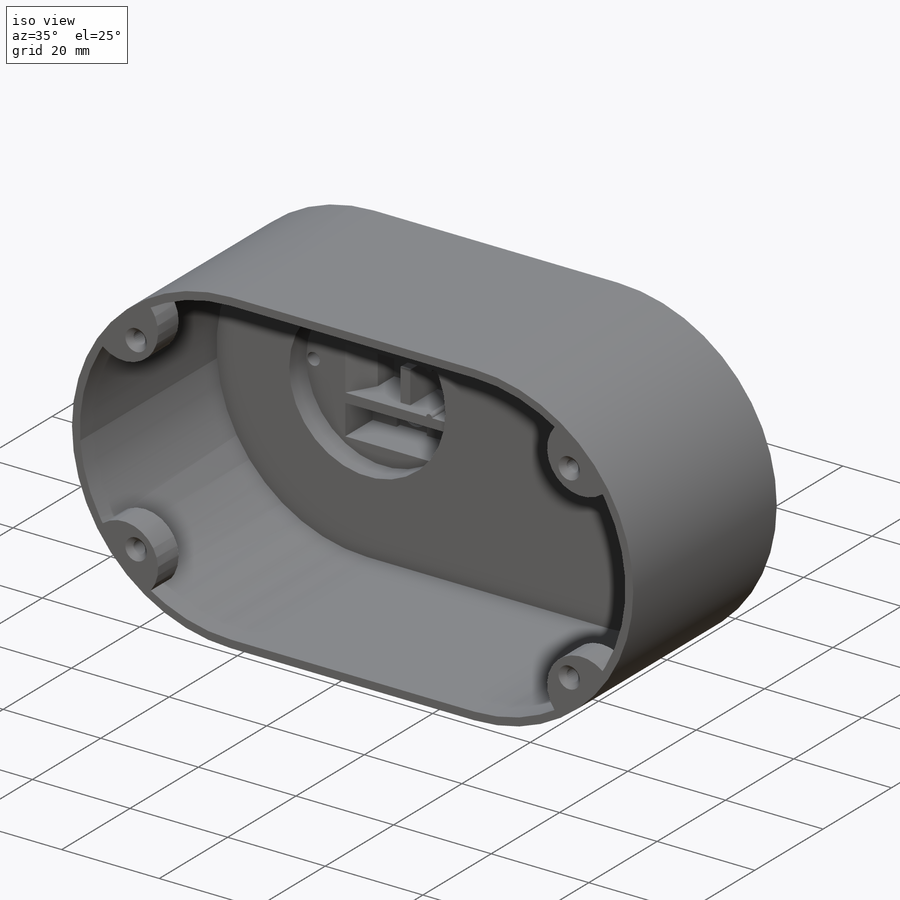
[diagram: iso view]
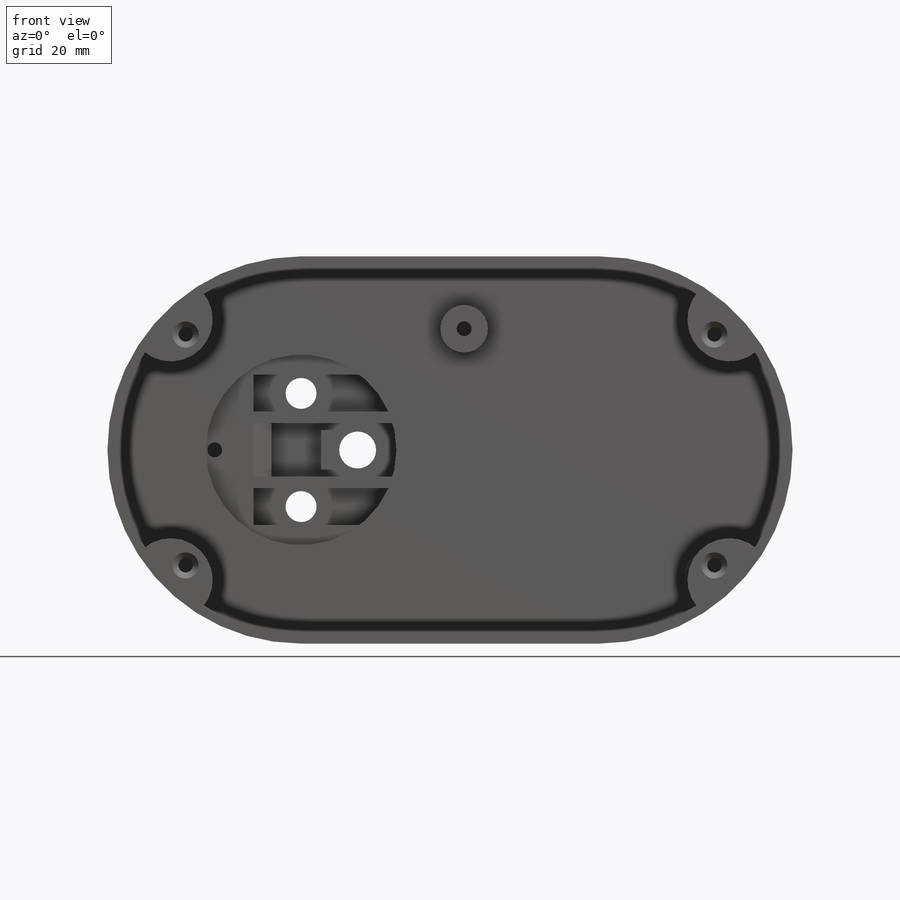
[diagram: front view]
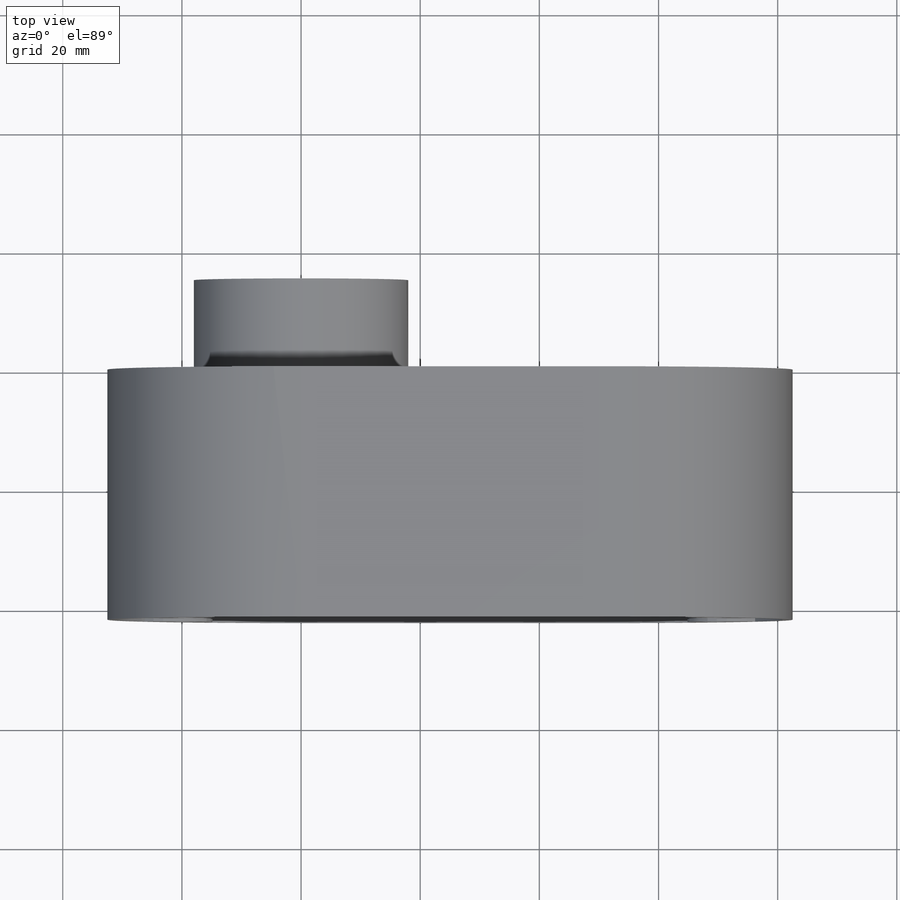
[diagram: top view]
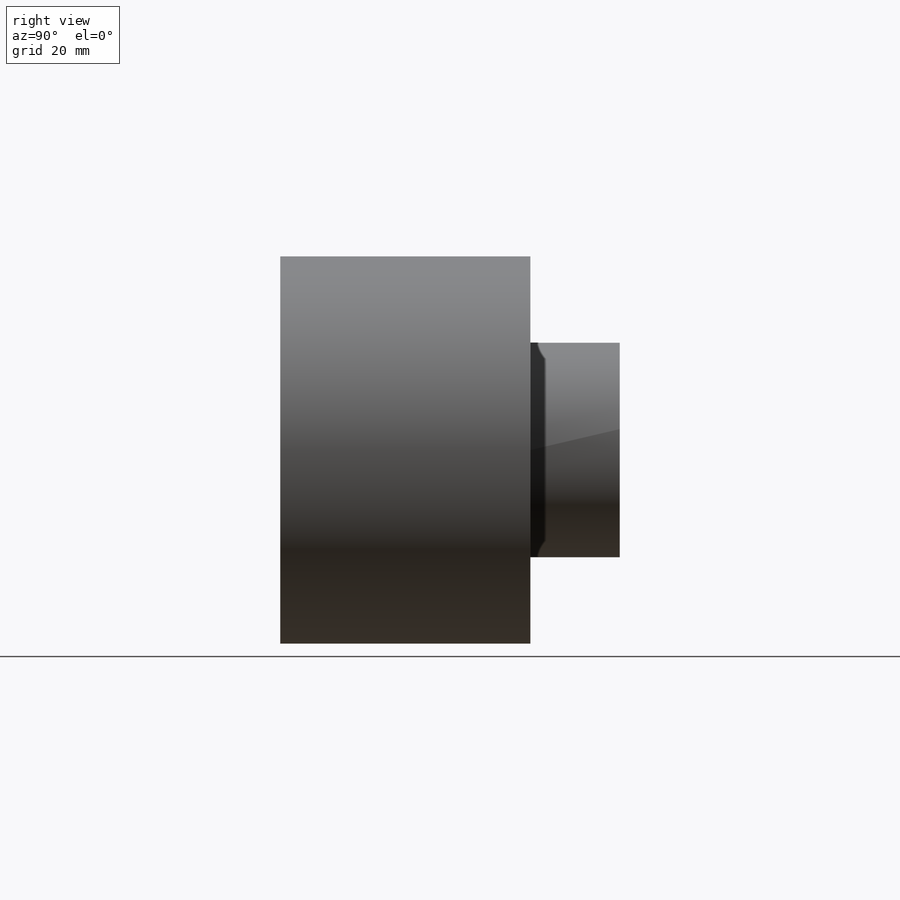
[diagram: right view]
SOLIDWORKS PART (.sldprt)
format: sldprt  version: not decoded by parser v0  size: 1,106,432 bytes
history: native  units: mm
features: sketch x101, extrude x7, cut_extrude x7, plane x4, mirror x4, chamfer x3, material x1, fillet x1 + 13 further entries (+8 scaffold rows collapsed)
feature tree (149):
  scaffold x8  (default folders/planes/origin — collapsed)
  material  "Matériau <non spécifié>"
  plane  "Plan de face"
  plane  "Plan de dessus"
  plane  "Plan de droite"
  sketch  "Esquisse1"  dims[c1.GUID_DATA1=3891427352.0 c1.GUID_DATA2=10063.0 c1.GUID_DATA3=19142.0 c2.GUID_DATA1=0.0 c2.GUID_DATA2=0.0 c2.GUID_DATA3=0.0 c2.GUID_DATA4=0.0mm c2.D1=32.5mm c2.D2=50.0mm]
  extrude  "Boss.-Extru.1"  Depth=2mm
  sketch  "{CAC399D5-7181-45B3-B7FF-4CB6D20FA387}"  dims[GUID_DATA1=2955653575.0 GUID_DATA2=54351.0 GUID_DATA3=18175.0 GUID_DATA4=0.0mm]
  sketch  "{2CB21223-2691-4886-9016-6CAEB0B5AC3D}"  dims[GUID_DATA1=2099586864.0 GUID_DATA2=50400.0 GUID_DATA3=16433.0 GUID_DATA4=0.0mm]
  sketch  "{3EBC2892-087A-48CD-A9FB-F90536A55A7B}"  dims[GUID_DATA1=251331843.0 GUID_DATA2=57051.0 GUID_DATA3=19384.0 GUID_DATA4=0.0mm]
  sketch  "{010481DC-C681-4EB2-8F40-6B2A79FB80EE}"  dims[GUID_DATA1=3942187016.0 GUID_DATA2=15484.0 GUID_DATA3=17201.0 GUID_DATA4=0.0mm]
  sketch  "{8CE13891-4C69-460B-9224-ED3F18BE4A56}"  dims[GUID_DATA1=268806512.0 GUID_DATA2=53401.0 GUID_DATA3=20333.0 GUID_DATA4=0.0mm]
  sketch  "{69EEE365-B148-46A7-AB54-C947E985E763}"  dims[GUID_DATA1=2578881357.0 GUID_DATA2=3548.0 GUID_DATA3=18072.0 GUID_DATA4=0.0mm]
  sketch  "{97764B1B-7099-4248-B48B-8FF073250A7C}"  dims[GUID_DATA1=2825704445.0 GUID_DATA2=45252.0 GUID_DATA3=18833.0 GUID_DATA4=0.0mm]
  "Esquisse2"
  sketch  "{E189EA8C-860C-497B-8E10-1ED0E1C1C1D0}"  dims[GUID_DATA1=1474706472.0 GUID_DATA2=6737.0 GUID_DATA3=17559.0 GUID_DATA4=0.0mm D1=36.0mm]
  extrude  "Boss.-Extru.2"  Depth=15mm
  sketch  "{675A2B22-71D7-47A8-B26C-B4EEA5A2F3A6}"  dims[GUID_DATA1=2573582615.0 GUID_DATA2=10901.0 GUID_DATA3=16830.0 GUID_DATA4=0.0mm]
  sketch  "{448FDAA1-1A55-4FD7-AE15-6AF6097A66E5}"  dims[GUID_DATA1=1635426370.0 GUID_DATA2=61090.0 GUID_DATA3=17356.0 GUID_DATA4=0.0mm]
  "Esquisse3"
  sketch  "{9596574C-DE57-4981-8D36-F91DE71BE8BA}"  dims[c1.GUID_DATA1=4196726974.0 c1.GUID_DATA2=47312.0 c1.GUID_DATA3=19763.0 c1.GUID_DATA4=0.0mm c1.D3=5.2mm c1.D4=6.2mm c1.D1=9.2mm c1.D2=9.5mm c2.D1=9.5mm]
  cut_extrude  "Enlèv. mat.-Extru.1"  [1 undecoded]
  sketch  "{3B7A77E8-7349-494E-98E4-59353B8DDAC3}"  dims[GUID_DATA1=1483609680.0 GUID_DATA2=13338.0 GUID_DATA3=17060.0 GUID_DATA4=0.0mm]
  sketch  "{4C65EE14-8E82-48EB-8050-534365ABA2F2}"  dims[GUID_DATA1=2198550263.0 GUID_DATA2=22047.0 GUID_DATA3=16528.0 GUID_DATA4=0.0mm]
  sketch  "{60EA13AD-C02F-4922-A046-4974609AB29D}"  dims[GUID_DATA1=2693622714.0 GUID_DATA2=26927.0 GUID_DATA3=19316.0 GUID_DATA4=0.0mm]
  "Esquisse4"
  sketch  "{06432869-9013-47AD-847D-2629B7E2244C}"  dims[GUID_DATA1=3978762357.0 GUID_DATA2=8318.0 GUID_DATA3=17601.0 GUID_DATA4=0.0mm D1=32.0mm]
  cut_extrude  "Enlèv. mat.-Extru.2"  Depth=12mm
  sketch  "{77ABC9E6-71DA-4984-AE23-7BEED36460FF}"  dims[GUID_DATA1=4242968505.0 GUID_DATA2=61816.0 GUID_DATA3=19689.0 GUID_DATA4=0.0mm]
  sketch  "{9F793D0B-1E08-428A-9C78-9C463046D8DD}"  dims[GUID_DATA1=1829321910.0 GUID_DATA2=62031.0 GUID_DATA3=18561.0 GUID_DATA4=0.0mm]
  "Esquisse5"
  sketch  "{6CF0DC9D-C90F-4735-88B3-4187D17C6903}"  dims[GUID_DATA1=3138130186.0 GUID_DATA2=24549.0 GUID_DATA3=19891.0 GUID_DATA4=0.0mm D1=7.7mm D2=14.5mm D3=9.0mm]
  cut_extrude  "Enlèv. mat.-Extru.3"  Depth=2mm
  sketch  "{5D09149A-F6F2-4479-ABDA-EC0E541225FA}"  dims[GUID_DATA1=1030500142.0 GUID_DATA2=43944.0 GUID_DATA3=17436.0 GUID_DATA4=0.0mm]
  sketch  "{DDC24788-323C-4D8C-BA52-CC31A376D18A}"  dims[GUID_DATA1=103536875.0 GUID_DATA2=37597.0 GUID_DATA3=20080.0 GUID_DATA4=0.0mm]
  sketch  "{221F4340-D651-4FCD-B448-9DF5FE4F5A22}"  dims[GUID_DATA1=505320140.0 GUID_DATA2=21019.0 GUID_DATA3=17514.0 GUID_DATA4=0.0mm]
  sketch  "{0B5BB005-021E-4332-87C3-D5BFC9976D1F}"  dims[GUID_DATA1=3677326501.0 GUID_DATA2=33127.0 GUID_DATA3=19586.0 GUID_DATA4=0.0mm]
  sketch  "{EE6E0E8C-495F-447A-BBDC-1297484589D9}"  dims[GUID_DATA1=1877150418.0 GUID_DATA2=47297.0 GUID_DATA3=17332.0 GUID_DATA4=0.0mm]
  sketch  "{7BFE6BD9-BCA7-4530-8508-F7B7C89335EE}"  dims[GUID_DATA1=2218851768.0 GUID_DATA2=22216.0 GUID_DATA3=17987.0 GUID_DATA4=0.0mm]
  fillet  "Congé1"  Radius=2mm
  sketch  "{484D6F17-37EF-4B0D-A4BB-2232D47B4E47}"  dims[GUID_DATA1=4103685495.0 GUID_DATA2=12097.0 GUID_DATA3=18227.0 GUID_DATA4=0.0mm]
  sketch  "{F0CB7596-7514-4A0A-B9E2-C70915F36441}"  dims[GUID_DATA1=2253126026.0 GUID_DATA2=18413.0 GUID_DATA3=19844.0 GUID_DATA4=0.0mm]
  "Esquisse6"
  sketch  "{3C2C4D8B-6726-4A76-84B7-DD2FAAC8BF6B}"  dims[GUID_DATA1=1876612188.0 GUID_DATA2=65043.0 GUID_DATA3=19238.0 GUID_DATA4=0.0mm D1=0.6mm]
  extrude  "Boss.-Extru.3"  [1 undecoded]
  sketch  "{BBA96E1B-69CA-4486-8082-863A64B8AEDA}"  dims[GUID_DATA1=2850821204.0 GUID_DATA2=41414.0 GUID_DATA3=16709.0 GUID_DATA4=0.0mm]
  sketch  "{E38207F5-EEC5-4D4D-B595-A9BB106702B9}"  dims[GUID_DATA1=2870247874.0 GUID_DATA2=53597.0 GUID_DATA3=19318.0 GUID_DATA4=0.0mm]
  mirror  "Symétrie1"
  sketch  "{3FF35698-7D08-46DC-AC71-AF5CBE242BE9}"  dims[GUID_DATA1=1809523205.0 GUID_DATA2=26079.0 GUID_DATA3=19003.0 GUID_DATA4=0.0mm]
  sketch  "{D5B9F9D5-4B8F-4171-A0CC-CA628296C27A}"  dims[GUID_DATA1=1803480661.0 GUID_DATA2=63673.0 GUID_DATA3=18233.0 GUID_DATA4=0.0mm]
  "Esquisse7"
  sketch  "{366FC631-0C1B-40D3-AA0C-F912D7E897A5}"  dims[GUID_DATA1=2690981584.0 GUID_DATA2=40961.0 GUID_DATA3=17001.0 GUID_DATA4=0.0mm D1=1.2mm D2=2.0mm D3=4.2mm]
  extrude  "Boss.-Extru.4"  [1 undecoded]
  sketch  "{17C4F2AE-77B0-42B0-8F11-0B19A950069E}"  dims[GUID_DATA1=1715804824.0 GUID_DATA2=33870.0 GUID_DATA3=16652.0 GUID_DATA4=0.0mm]
  sketch  "{321ED3AC-0709-4179-AB0A-BBDF16EBF307}"  dims[GUID_DATA1=653467230.0 GUID_DATA2=40904.0 GUID_DATA3=19993.0 GUID_DATA4=0.0mm]
  sketch  "{39F21528-19C2-425F-AB18-E34AD1E5604C}"  dims[GUID_DATA1=3655320855.0 GUID_DATA2=6307.0 GUID_DATA3=18543.0 GUID_DATA4=0.0mm]
  sketch  "{7965F988-76F0-432E-8411-2C7E37250ECF}"  dims[GUID_DATA1=4065182261.0 GUID_DATA2=41955.0 GUID_DATA3=17676.0 GUID_DATA4=0.0mm]
  sketch  "{256A35DA-3CAE-4FA7-B2E1-CA392DC179D9}"  dims[GUID_DATA1=1529933444.0 GUID_DATA2=19904.0 GUID_DATA3=18630.0 GUID_DATA4=0.0mm]
  "Esquisse9"
  sketch  "{338614C1-AF00-4BF1-B42E-D2EC6FC9B9E0}"  dims[GUID_DATA1=3222455488.0 GUID_DATA2=32361.0 GUID_DATA3=17463.0 GUID_DATA4=0.0mm D1=6.2mm D2=8.0mm]
  cut_extrude  "Enlèv. mat.-Extru.4"  Depth=4mm
  sketch  "{F817381A-C1F1-498A-BF1A-1CA5A7C5F3F6}"  dims[GUID_DATA1=4213509259.0 GUID_DATA2=20209.0 GUID_DATA3=18895.0 GUID_DATA4=0.0mm]
  sketch  "{151D5179-EE12-41C9-990B-61AE79095DC6}"  dims[GUID_DATA1=52988858.0 GUID_DATA2=38109.0 GUID_DATA3=17329.0 GUID_DATA4=0.0mm]
  sketch  "{6B5600E3-FDCC-4689-BE43-155F28DD9A98}"  dims[GUID_DATA1=2665514392.0 GUID_DATA2=40876.0 GUID_DATA3=20154.0 GUID_DATA4=0.0mm]
  sketch  "{E8A4BD90-1B29-457F-ABD0-97564BA14E62}"  dims[GUID_DATA1=2742448199.0 GUID_DATA2=42488.0 GUID_DATA3=20253.0 GUID_DATA4=0.0mm]
  sketch  "{0C20FA27-E7C2-4454-97D3-AD34347ED692}"  dims[GUID_DATA1=1606660904.0 GUID_DATA2=11615.0 GUID_DATA3=18654.0 GUID_DATA4=0.0mm]
  "Esquisse10"
  sketch  "{F506078A-5B24-4B83-B3ED-06344D52B8C3}"  dims[GUID_DATA1=4097236769.0 GUID_DATA2=51182.0 GUID_DATA3=18287.0 GUID_DATA4=0.0mm D1=6.0mm]
  cut_extrude  "Enlèv. mat.-Extru.6"  Depth=1mm
  sketch  "{B4D0B40E-0359-4DC8-9C4C-C5CA2ADA9759}"  dims[GUID_DATA1=2951278119.0 GUID_DATA2=1305.0 GUID_DATA3=16500.0 GUID_DATA4=0.0mm]
  sketch  "{7A6535FE-9B7C-4581-9781-B414FBCE5B87}"  dims[GUID_DATA1=883260422.0 GUID_DATA2=54807.0 GUID_DATA3=19328.0 GUID_DATA4=0.0mm]
  sketch  "{7EDB965B-84A3-43A8-9674-73BFC7EB3D19}"  dims[GUID_DATA1=1138269635.0 GUID_DATA2=5888.0 GUID_DATA3=20380.0 GUID_DATA4=0.0mm]
  sketch  "{9CD52951-EC2D-4DEF-A741-CE1D49281F07}"  dims[GUID_DATA1=2536364749.0 GUID_DATA2=19816.0 GUID_DATA3=19167.0 GUID_DATA4=0.0mm]
  sketch  "{FD26AF42-6C70-41EA-BDFA-CE3BA5517F0D}"  dims[GUID_DATA1=2164924819.0 GUID_DATA2=2515.0 GUID_DATA3=19656.0 GUID_DATA4=0.0mm]
  sketch  "{E5DC19DC-3478-407F-B4DA-2782C0D0C43E}"  dims[GUID_DATA1=3178595680.0 GUID_DATA2=18827.0 GUID_DATA3=19495.0 GUID_DATA4=0.0mm]
  mirror  "Symétrie2"
  sketch  "{5A9191E4-05E6-4ADF-A58D-7E92CBB32D2F}"  dims[GUID_DATA1=4080400372.0 GUID_DATA2=37056.0 GUID_DATA3=18953.0 GUID_DATA4=0.0mm]
  sketch  "{906A6833-F087-4FCE-82C7-0E50A6401280}"  dims[GUID_DATA1=1153811633.0 GUID_DATA2=49315.0 GUID_DATA3=17920.0 GUID_DATA4=0.0mm]
  sketch  "{C3794B0D-8901-49F4-BA78-74AE1544A02A}"  dims[GUID_DATA1=1494864752.0 GUID_DATA2=40468.0 GUID_DATA3=18163.0 GUID_DATA4=0.0mm]
  sketch  "{73A8F340-1B57-4C7D-9D25-B8075E872D85}"  dims[GUID_DATA1=235367223.0 GUID_DATA2=64331.0 GUID_DATA3=19723.0 GUID_DATA4=0.0mm]
  sketch  "{5CF06AD5-1FDB-4F01-B1FD-428F7B3AAB02}"  dims[GUID_DATA1=495899555.0 GUID_DATA2=15230.0 GUID_DATA3=20437.0 GUID_DATA4=0.0mm]
  sketch  "{F5D82AC7-9833-4567-8BC4-586DEA138FD5}"  dims[GUID_DATA1=2676155084.0 GUID_DATA2=53359.0 GUID_DATA3=18198.0 GUID_DATA4=0.0mm]
  sketch  "{3C5A4DF7-6556-434D-91B6-C5C3D694EFE8}"  dims[GUID_DATA1=2467368391.0 GUID_DATA2=24470.0 GUID_DATA3=18743.0 GUID_DATA4=0.0mm]
  sketch  "{F324C097-AAC7-4EC1-B8C8-C0A314FE0ADA}"  dims[GUID_DATA1=826442208.0 GUID_DATA2=57669.0 GUID_DATA3=19064.0 GUID_DATA4=0.0mm]
  "Esquisse11"
  sketch  "{D5F7A324-5E00-4A89-ADDD-D8701FF5DC27}"  dims[GUID_DATA1=2604869394.0 GUID_DATA2=10261.0 GUID_DATA3=19323.0 GUID_DATA4=0.0mm D1=2.5mm D2=14.5mm]
  cut_extrude  "Enlèv. mat.-Extru.7"  Depth=10mm
  sketch  "{9C3807F2-126B-4E80-9BA1-CD7489AEAC9A}"  dims[GUID_DATA1=1249105013.0 GUID_DATA2=53831.0 GUID_DATA3=20317.0 GUID_DATA4=0.0mm]
  sketch  "{336903FA-905A-41B6-A25B-E941B1C5369B}"  dims[GUID_DATA1=3718020414.0 GUID_DATA2=36268.0 GUID_DATA3=19689.0 GUID_DATA4=0.0mm]
  chamfer  "Chanfrein1"  Distance=3mm Angle=60deg
  sketch  "{ED71B5A8-49ED-441B-86ED-61D4BB03DE53}"  dims[GUID_DATA1=305085153.0 GUID_DATA2=13356.0 GUID_DATA3=18121.0 GUID_DATA4=0.0mm]
  "Esquisse12"
  sketch  "{15D87456-8A5C-4019-B666-80EFD2633C21}"  dims[GUID_DATA1=1770746895.0 GUID_DATA2=51152.0 GUID_DATA3=18453.0 GUID_DATA4=0.0mm D1=1.6mm]
  extrude  "Boss.-Extru.5"  Depth=40mm
  sketch  "{BC42DFDD-5DA8-4137-9040-1A61B92C6375}"  dims[GUID_DATA1=2704124908.0 GUID_DATA2=17573.0 GUID_DATA3=17778.0 GUID_DATA4=0.0mm]
  sketch  "{B8410919-F367-4115-BF6C-904DA6D5E8F7}"  dims[GUID_DATA1=1743250156.0 GUID_DATA2=62238.0 GUID_DATA3=17796.0 GUID_DATA4=0.0mm]
  sketch  "{72CAB75A-1496-4D7D-A5B1-C9A24A6F4FF2}"  dims[GUID_DATA1=407106108.0 GUID_DATA2=51092.0 GUID_DATA3=18396.0 GUID_DATA4=0.0mm]
  sketch  "{0E2AA6CC-737B-444F-801D-2A689F0FA6DE}"  dims[GUID_DATA1=3348197263.0 GUID_DATA2=20324.0 GUID_DATA3=18063.0 GUID_DATA4=0.0mm]
  sketch  "{9E8D8355-92A8-4E5F-BB1C-F0BC9DEF6B3E}"  dims[GUID_DATA1=1124954678.0 GUID_DATA2=52568.0 GUID_DATA3=17615.0 GUID_DATA4=0.0mm]
  "Esquisse13"
  sketch  "{7B11852A-1C81-4806-AE20-C379D2F1F41C}"  dims[GUID_DATA1=632234268.0 GUID_DATA2=57122.0 GUID_DATA3=17390.0 GUID_DATA4=0.0mm D1=1.0mm D2=6.0mm]
  cut_extrude  "Enlèv. mat.-Extru.12"  Depth=2mm
  sketch  "{B44246D3-5473-488B-B10A-3783ACAE06FE}"  dims[GUID_DATA1=2491202449.0 GUID_DATA2=42155.0 GUID_DATA3=20079.0 GUID_DATA4=0.0mm]
  sketch  "{820E6DC0-4BF7-42EC-8467-92A1D7336841}"  dims[GUID_DATA1=3699125554.0 GUID_DATA2=56428.0 GUID_DATA3=17654.0 GUID_DATA4=0.0mm]
  sketch  "{DAB175ED-7718-44F7-9F33-F26F3F839A2E}"  dims[GUID_DATA1=3629424453.0 GUID_DATA2=59231.0 GUID_DATA3=16672.0 GUID_DATA4=0.0mm]
  sketch  "{74CF86F7-4E72-46E6-9413-CA05843ED5E7}"  dims[GUID_DATA1=2826138109.0 GUID_DATA2=45124.0 GUID_DATA3=19301.0 GUID_DATA4=0.0mm]
  "Esquisse14"
  sketch  "{D7A27B06-DC08-4088-9220-3AEA655C76F9}"  dims[GUID_DATA1=2344596665.0 GUID_DATA2=48704.0 GUID_DATA3=16600.0 GUID_DATA4=0.0mm D1=8.0mm D2=2.5mm D3=2.5mm D4=8.0mm]
  extrude  "Boss.-Extru.6"  Depth=11mm
  sketch  "{4A45E8F9-88AF-4C4A-8C9B-FB3ED26488C3}"  dims[GUID_DATA1=1629062774.0 GUID_DATA2=4144.0 GUID_DATA3=16719.0 GUID_DATA4=0.0mm]
  sketch  "{E9416869-A2D0-440A-B4C0-B8A90F373522}"  dims[GUID_DATA1=43502906.0 GUID_DATA2=34878.0 GUID_DATA3=19744.0 GUID_DATA4=0.0mm]
  sketch  "{F02B2743-7430-4166-AB8E-082BFEA7E03F}"  dims[GUID_DATA1=4147923293.0 GUID_DATA2=60390.0 GUID_DATA3=18775.0 GUID_DATA4=0.0mm]
  sketch  "{ADC976B7-8141-4424-9E78-F0FF559B3831}"  dims[GUID_DATA1=2835347002.0 GUID_DATA2=41061.0 GUID_DATA3=19820.0 GUID_DATA4=0.0mm]
  sketch  "{38F72785-C233-434D-978E-F31640371963}"  dims[GUID_DATA1=2710803020.0 GUID_DATA2=2680.0 GUID_DATA3=16913.0 GUID_DATA4=0.0mm]
  sketch  "{D2371A95-8602-4FBA-929A-00C72E3192F9}"  dims[GUID_DATA1=1531153814.0 GUID_DATA2=31267.0 GUID_DATA3=17783.0 GUID_DATA4=0.0mm]
  sketch  "{619F3E59-F58C-44D4-9E44-FF4A853E7F60}"  dims[GUID_DATA1=4110257937.0 GUID_DATA2=8540.0 GUID_DATA3=17153.0 GUID_DATA4=0.0mm]
  sketch  "{2EEA4D44-ED8C-49D0-8115-FD7659CBBCBB}"  dims[GUID_DATA1=2482245011.0 GUID_DATA2=64015.0 GUID_DATA3=18340.0 GUID_DATA4=0.0mm]
  "Esquisse16"
  sketch  "{4B44BD26-1521-4D9D-A336-08E539D929FD}"  dims[c1.GUID_DATA1=3142072347.0 c1.GUID_DATA2=51456.0 c1.GUID_DATA3=18178.0 c1.GUID_DATA4=0.0mm c1.D2=2.4mm c1.D3=~6.84045mm c1.D4=7.0mm c1.D1=30.0mm c2.D1=135.0deg c2.D3=3.5mm]
  extrude  "Boss.-Extru.7"  Depth=10mm
  sketch  "{9AEC206B-9C3F-48E3-88AE-1ABB1EB93EAB}"  dims[GUID_DATA1=3509107819.0 GUID_DATA2=4027.0 GUID_DATA3=16813.0 GUID_DATA4=0.0mm]
  sketch  "{F6537DAC-5873-4FC7-A8FE-715DAA62BFEB}"  dims[GUID_DATA1=1192305209.0 GUID_DATA2=61855.0 GUID_DATA3=19489.0 GUID_DATA4=0.0mm]
  sketch  "{96394DE4-0D59-44B6-9851-06BBBDEF4105}"  dims[GUID_DATA1=1987170371.0 GUID_DATA2=33937.0 GUID_DATA3=16806.0 GUID_DATA4=0.0mm]
  mirror  "Symétrie3"
  sketch  "{A4F97D1A-3CE1-473F-9A1E-65B96044F80C}"  dims[GUID_DATA1=1469988627.0 GUID_DATA2=65480.0 GUID_DATA3=19085.0 GUID_DATA4=0.0mm]
  sketch  "{E3D2D5C9-6477-4B0E-9AD5-E749342DB416}"  dims[GUID_DATA1=1716179900.0 GUID_DATA2=59542.0 GUID_DATA3=18448.0 GUID_DATA4=0.0mm]
  plane  "Plan2"
  mirror  "Symétrie4"
  sketch  "{4C47EC7C-5AF1-4A46-886B-ABCECEBF1E93}"  dims[GUID_DATA1=475595534.0 GUID_DATA2=50207.0 GUID_DATA3=17310.0 GUID_DATA4=0.0mm]
  sketch  "{FBB9954E-67AA-441F-A1C7-D822C7F384F1}"  dims[GUID_DATA1=1841972802.0 GUID_DATA2=38791.0 GUID_DATA3=17146.0 GUID_DATA4=0.0mm]
  sketch  "{8ECFC1A8-E296-4CAB-8F61-30D58BF717CE}"  dims[GUID_DATA1=4290927279.0 GUID_DATA2=38562.0 GUID_DATA3=18607.0 GUID_DATA4=0.0mm]
  sketch  "{8F1733AD-727F-46C7-B080-62D80B8D150A}"  dims[GUID_DATA1=3594652357.0 GUID_DATA2=41029.0 GUID_DATA3=17059.0 GUID_DATA4=0.0mm]
  sketch  "{A26BCC20-AF62-43EE-8B0B-FB3DC6F2902A}"  dims[GUID_DATA1=3653660987.0 GUID_DATA2=18105.0 GUID_DATA3=20329.0 GUID_DATA4=0.0mm]
  sketch  "{6AD75420-655C-4500-9BE1-959981C59F56}"  dims[GUID_DATA1=2024262380.0 GUID_DATA2=10765.0 GUID_DATA3=17485.0 GUID_DATA4=0.0mm]
  sketch  "{565EFACD-99C1-4B71-8A43-ED51048EDA0C}"  dims[GUID_DATA1=665364800.0 GUID_DATA2=4125.0 GUID_DATA3=18735.0 GUID_DATA4=0.0mm]
  sketch  "{7DC15D66-9964-4517-B6AE-D9D824155670}"  dims[GUID_DATA1=1864993127.0 GUID_DATA2=45500.0 GUID_DATA3=20165.0 GUID_DATA4=0.0mm]
  chamfer  "Chanfrein2"  Distance=1mm Angle=45deg
  sketch  "{63DF9595-5155-43D6-B7F5-F0B9B9F99543}"  dims[GUID_DATA1=2145155576.0 GUID_DATA2=45614.0 GUID_DATA3=18002.0 GUID_DATA4=0.0mm]
  sketch  "{9EFC3E1B-DB18-48CC-B2AE-46843A57DC3E}"  dims[GUID_DATA1=1290307454.0 GUID_DATA2=42415.0 GUID_DATA3=17902.0 GUID_DATA4=0.0mm]
  sketch  "{56074873-A749-4BFC-94AC-A9E4E55ABC81}"  dims[GUID_DATA1=1291901228.0 GUID_DATA2=34222.0 GUID_DATA3=20248.0 GUID_DATA4=0.0mm]
  sketch  "{D41C2E81-19AD-45EB-BFF1-D61B814C2CF9}"  dims[GUID_DATA1=1812015194.0 GUID_DATA2=11899.0 GUID_DATA3=17273.0 GUID_DATA4=0.0mm]
  chamfer  "Chanfrein3"  Distance=4mm Angle=45deg
decode coverage: 116 of 123 modeling features carry decoded parameters; 13 rows unclassified (native names shown)
note: ~ marks probable driven/reference dimensions
note: 3 parameter values undecoded
summary: no parameter record found for 3 features
note: suppression state not decoded; provenance and decode notes live in map.json
